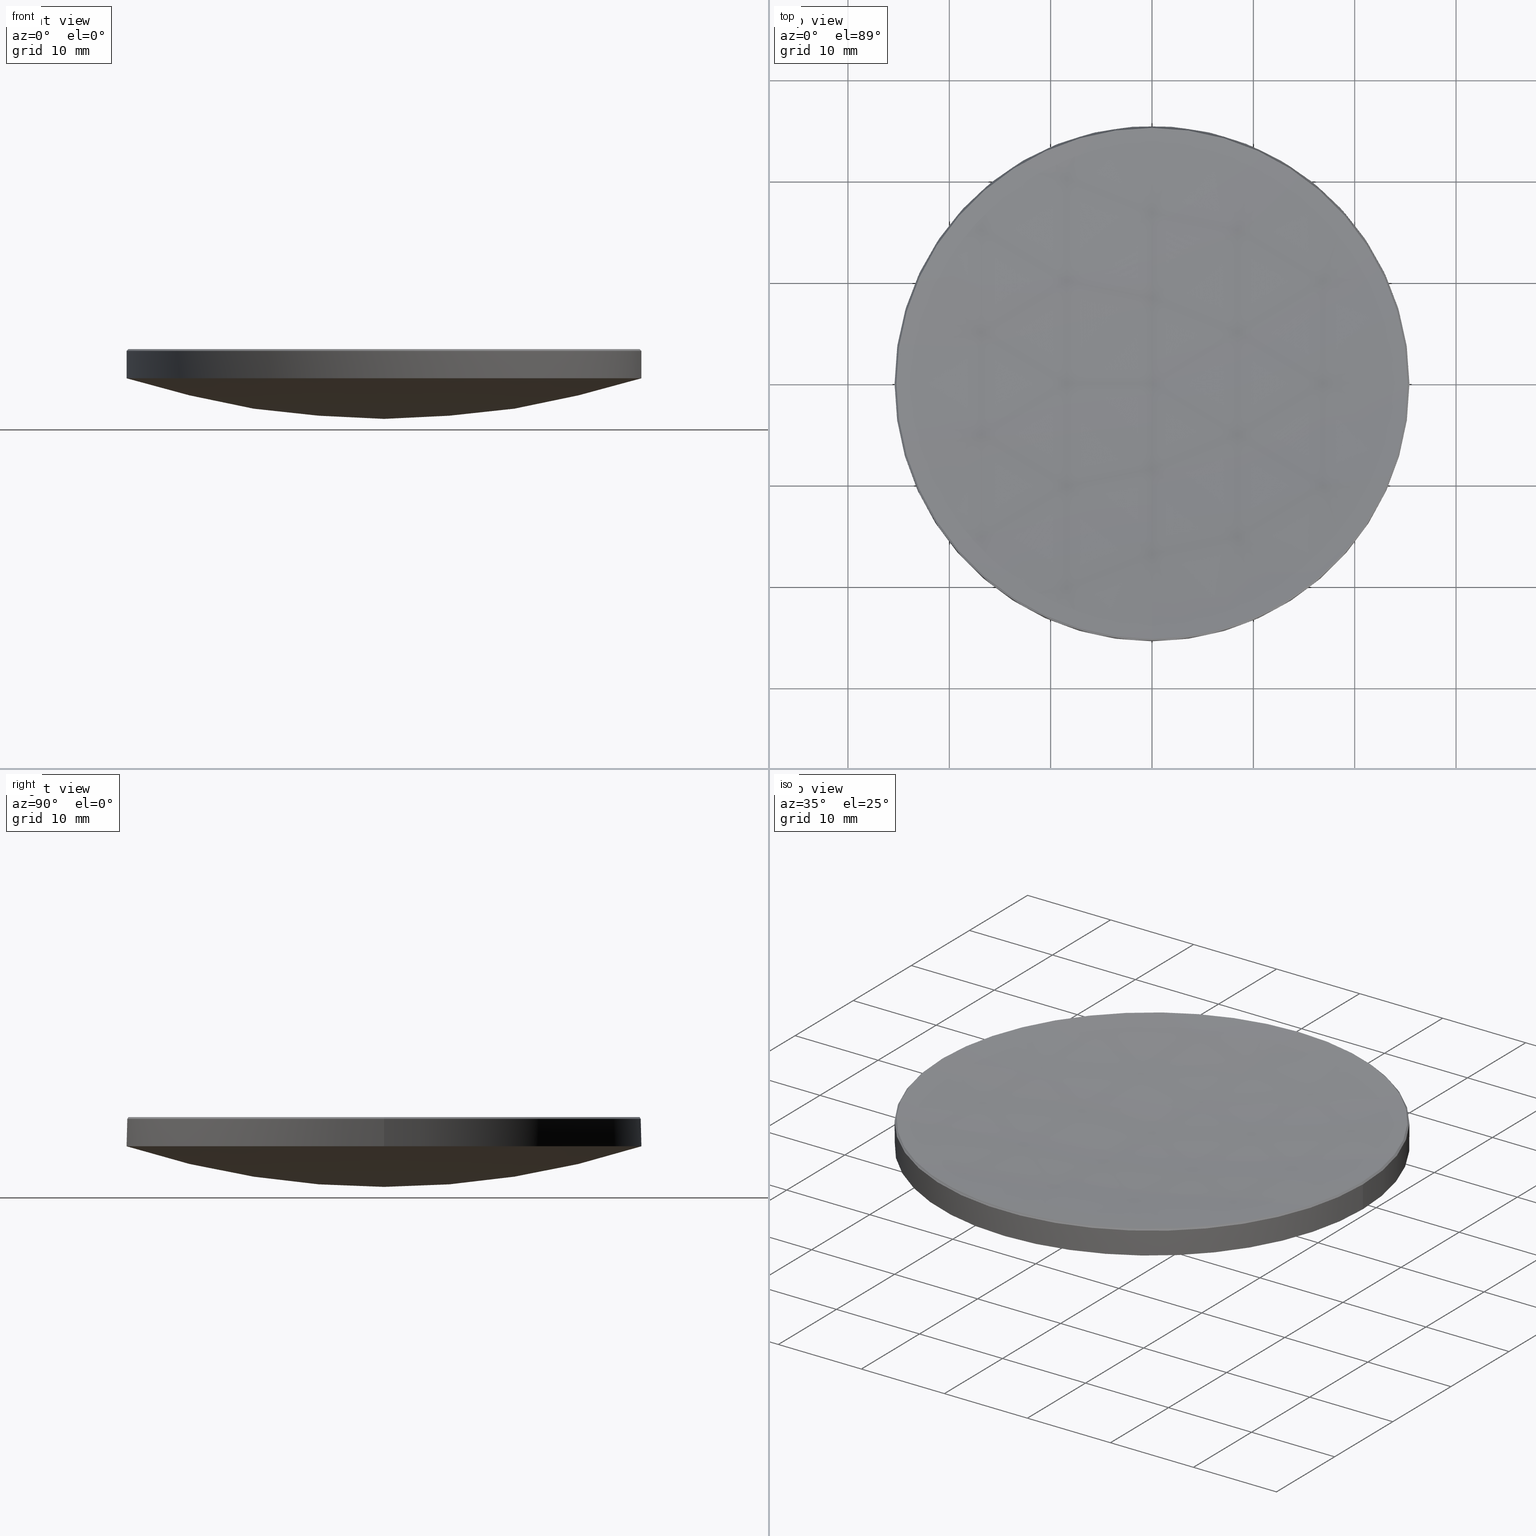
[diagram: canonical four-view strip — front | top / right | iso, engineering-drawing reading convention]
A machine part, canonical four-view strip (front | top / right | iso — engineering-drawing reading convention). The complete STEP part file that produces these views, byte-faithful:
ISO-10303-21;
HEADER;
FILE_DESCRIPTION (( 'STEP AP214' ),
    '1' );
FILE_NAME ('GLM1-050B-250-VIS.STEP',
    '2024-08-09T02:38:12',
    ( 'Windows User' ),
    ( 'P R C' ),
    'SwSTEP 2.0',
    'SolidWorks 2022',
    '' );
FILE_SCHEMA (( 'AUTOMOTIVE_DESIGN' ));
ENDSEC;

DATA;
#1 = DIRECTION ( 'NONE',  ( 1.000000000000000000, 0.000000000000000000, 0.000000000000000000 ) ) ;
#2 = FACE_OUTER_BOUND ( 'NONE', #19, .T. ) ;
#3 = CIRCLE ( 'NONE', #115, 25.22036627463847935 ) ;
#4 = CARTESIAN_POINT ( 'NONE',  ( 0.000000000000000000, 0.000000000000000000, 20.00000000000000000 ) ) ;
#5 = PRESENTATION_LAYER_ASSIGNMENT (  '', '', ( #191 ) ) ;
#6 = DIRECTION ( 'NONE',  ( 1.000000000000000000, 0.000000000000000000, 0.000000000000000000 ) ) ;
#7 = LINE ( 'NONE', #77, #212 ) ;
#8 = AXIS2_PLACEMENT_3D ( 'NONE', #143, #102, #11 ) ;
#9 = EDGE_CURVE ( 'NONE', #30, #176, #51, .T. ) ;
#10 = AXIS2_PLACEMENT_3D ( 'NONE', #168, #84, #130 ) ;
#11 = DIRECTION ( 'NONE',  ( -1.224646799147352961E-16, -1.000000000000000000, 0.000000000000000000 ) ) ;
#12 = APPLICATION_CONTEXT ( 'automotive_design' ) ;
#13 = SHAPE_DEFINITION_REPRESENTATION ( #219, #69 ) ;
#14 = CYLINDRICAL_SURFACE ( 'NONE', #44, 25.39999999999999858 ) ;
#15 = DIRECTION ( 'NONE',  ( 1.000000000000000000, 0.000000000000000000, 0.000000000000000000 ) ) ;
#16 = VERTEX_POINT ( 'NONE', #31 ) ;
#17 = DIRECTION ( 'NONE',  ( -0.000000000000000000, -0.000000000000000000, 1.000000000000000000 ) ) ;
#18 = CIRCLE ( 'NONE', #10, 224.6699999999999875 ) ;
#19 = EDGE_LOOP ( 'NONE', ( #110, #232, #244, #224 ) ) ;
#20 = AXIS2_PLACEMENT_3D ( 'NONE', #65, #111, #154 ) ;
#21 = ORIENTED_EDGE ( 'NONE', *, *, #239, .F. ) ;
#22 = AXIS2_PLACEMENT_3D ( 'NONE', #52, #53, #162 ) ;
#23 = VERTEX_POINT ( 'NONE', #116 ) ;
#24 = APPLICATION_CONTEXT ( 'automotive_design' ) ;
#25 = ORIENTED_EDGE ( 'NONE', *, *, #239, .T. ) ;
#26 = ADVANCED_FACE ( 'NONE', ( #159 ), #183, .T. ) ;
#27 = DIRECTION ( 'NONE',  ( -0.000000000000000000, -0.000000000000000000, -1.000000000000000000 ) ) ;
#28 = CIRCLE ( 'NONE', #147, 25.39999999999999858 ) ;
#29 = DIRECTION ( 'NONE',  ( 0.000000000000000000, 0.000000000000000000, -1.000000000000000000 ) ) ;
#30 = VERTEX_POINT ( 'NONE', #94 ) ;
#31 = CARTESIAN_POINT ( 'NONE',  ( -25.39999999999999858, 0.000000000000000000, 15.69999999999996376 ) ) ;
#32 = EDGE_CURVE ( 'NONE', #207, #30, #91, .T. ) ;
#33 = CARTESIAN_POINT ( 'NONE',  ( 0.000000000000000000, 25.39999999999999147, 12.99999999999999822 ) ) ;
#34 = SURFACE_SIDE_STYLE ('',( #138 ) ) ;
#35 = PRESENTATION_STYLE_ASSIGNMENT (( #192 ) ) ;
#36 =( NAMED_UNIT ( * ) SI_UNIT ( $, .STERADIAN. ) SOLID_ANGLE_UNIT ( ) );
#37 =( LENGTH_UNIT ( ) NAMED_UNIT ( * ) SI_UNIT ( .MILLI., .METRE. ) );
#38 = ORIENTED_EDGE ( 'NONE', *, *, #9, .T. ) ;
#39 = EDGE_CURVE ( 'NONE', #176, #23, #281, .T. ) ;
#40 = CIRCLE ( 'NONE', #271, 224.6699999999999875 ) ;
#41 = DIRECTION ( 'NONE',  ( 0.000000000000000000, 1.000000000000000000, 0.000000000000000000 ) ) ;
#42 = UNCERTAINTY_MEASURE_WITH_UNIT (LENGTH_MEASURE( 1.000000000000000082E-05 ), #174, 'distance_accuracy_value', 'NONE');
#43 = ORIENTED_EDGE ( 'NONE', *, *, #249, .T. ) ;
#44 = AXIS2_PLACEMENT_3D ( 'NONE', #100, #194, #270 ) ;
#45 = ORIENTED_EDGE ( 'NONE', *, *, #202, .F. ) ;
#46 = EDGE_CURVE ( 'NONE', #258, #71, #201, .T. ) ;
#47 = DIRECTION ( 'NONE',  ( -0.000000000000000000, -0.000000000000000000, -1.000000000000000000 ) ) ;
#48 = DIRECTION ( 'NONE',  ( -1.224646799147353207E-16, -1.000000000000000000, 0.000000000000000000 ) ) ;
#49 = DIRECTION ( 'NONE',  ( -1.000000000000000000, 0.000000000000000000, 0.000000000000000000 ) ) ;
#50 = ORIENTED_EDGE ( 'NONE', *, *, #46, .F. ) ;
#51 = CIRCLE ( 'NONE', #67, 25.39999999999999503 ) ;
#52 = CARTESIAN_POINT ( 'NONE',  ( 0.000000000000000000, 0.000000000000000000, 91.53465222435252713 ) ) ;
#53 = DIRECTION ( 'NONE',  ( -1.000000000000000000, 0.000000000000000000, 0.000000000000000000 ) ) ;
#54 = AXIS2_PLACEMENT_3D ( 'NONE', #200, #81, #15 ) ;
#55 = CARTESIAN_POINT ( 'NONE',  ( 0.000000000000000000, 0.000000000000000000, 15.87963372536152562 ) ) ;
#56 = CONICAL_SURFACE ( 'NONE', #161, 25.22036627463847580, 0.7853981633973421417 ) ;
#57 = CONICAL_SURFACE ( 'NONE', #274, 25.22036627463847580, 0.7853981633973421417 ) ;
#58 = SURFACE_STYLE_USAGE ( .BOTH. , #60 ) ;
#59 = VERTEX_POINT ( 'NONE', #250 ) ;
#60 = SURFACE_SIDE_STYLE ('',( #146 ) ) ;
#61 =( NAMED_UNIT ( * ) SI_UNIT ( $, .STERADIAN. ) SOLID_ANGLE_UNIT ( ) );
#62 = ORIENTED_EDGE ( 'NONE', *, *, #73, .F. ) ;
#63 = ORIENTED_EDGE ( 'NONE', *, *, #257, .F. ) ;
#64 = COLOUR_RGB ( '',1.000000000000000000, 1.000000000000000000, 1.000000000000000000 ) ;
#65 = CARTESIAN_POINT ( 'NONE',  ( 0.000000000000000000, 0.000000000000000000, 15.69999999999996376 ) ) ;
#66 = CARTESIAN_POINT ( 'NONE',  ( 25.39999999999999858, 3.110602869834276865E-15, 20.00000000000000000 ) ) ;
#67 = AXIS2_PLACEMENT_3D ( 'NONE', #205, #136, #88 ) ;
#68 = ORIENTED_EDGE ( 'NONE', *, *, #32, .T. ) ;
#69 = ADVANCED_BREP_SHAPE_REPRESENTATION ( 'GLM1-050B-250-VIS', ( #182, #54 ), #180 ) ;
#70 = ORIENTED_EDGE ( 'NONE', *, *, #257, .T. ) ;
#71 = VERTEX_POINT ( 'NONE', #264 ) ;
#72 = SPHERICAL_SURFACE ( 'NONE', #22, 82.54000000000000625 ) ;
#73 = EDGE_CURVE ( 'NONE', #261, #258, #170, .T. ) ;
#74 = DIRECTION ( 'NONE',  ( -1.000000000000000000, 0.000000000000000000, 0.000000000000000000 ) ) ;
#75 = CARTESIAN_POINT ( 'NONE',  ( 0.000000000000000000, 5.054117340081126317E-15, 8.994652224352527980 ) ) ;
#76 = PRODUCT_CONTEXT ( 'NONE', #12, 'mechanical' ) ;
#77 = CARTESIAN_POINT ( 'NONE',  ( -25.22036627463847580, 0.000000000000000000, 15.87963372536152562 ) ) ;
#78 = AXIS2_PLACEMENT_3D ( 'NONE', #273, #190, #167 ) ;
#79 = ADVANCED_FACE ( 'NONE', ( #188 ), #56, .T. ) ;
#80 = VERTEX_POINT ( 'NONE', #133 ) ;
#81 = DIRECTION ( 'NONE',  ( 0.000000000000000000, 0.000000000000000000, 1.000000000000000000 ) ) ;
#82 = ORIENTED_EDGE ( 'NONE', *, *, #39, .T. ) ;
#83 = AXIS2_PLACEMENT_3D ( 'NONE', #255, #120, #163 ) ;
#84 = DIRECTION ( 'NONE',  ( 1.000000000000000000, 0.000000000000000000, 0.000000000000000000 ) ) ;
#85 = UNCERTAINTY_MEASURE_WITH_UNIT (LENGTH_MEASURE( 1.000000000000000082E-05 ), #220, 'distance_accuracy_value', 'NONE');
#86 = ORIENTED_EDGE ( 'NONE', *, *, #123, .F. ) ;
#87 = VECTOR ( 'NONE', #47, 1000.000000000000000 ) ;
#88 = DIRECTION ( 'NONE',  ( 1.000000000000000000, 0.000000000000000000, 0.000000000000000000 ) ) ;
#89 = DIRECTION ( 'NONE',  ( -1.000000000000000000, 1.224646799147353207E-16, 0.000000000000000000 ) ) ;
#90 = PRODUCT_DEFINITION_FORMATION_WITH_SPECIFIED_SOURCE ( '�κ�', '', #124, .NOT_KNOWN. ) ;
#91 = LINE ( 'NONE', #66, #87 ) ;
#92 = VECTOR ( 'NONE', #247, 1000.000000000000000 ) ;
#93 = EDGE_CURVE ( 'NONE', #225, #261, #3, .T. ) ;
#94 = CARTESIAN_POINT ( 'NONE',  ( 25.39999999999999503, 3.110602869834276471E-15, 13.00000000000000000 ) ) ;
#95 = MECHANICAL_DESIGN_GEOMETRIC_PRESENTATION_REPRESENTATION (  '', ( #191 ), #256 ) ;
#96 = DIRECTION ( 'NONE',  ( 1.000000000000000000, 0.000000000000000000, 0.000000000000000000 ) ) ;
#97 = VECTOR ( 'NONE', #103, 1000.000000000000000 ) ;
#98 = DIRECTION ( 'NONE',  ( 0.000000000000000000, 0.000000000000000000, -1.000000000000000000 ) ) ;
#99 = DIRECTION ( 'NONE',  ( 1.000000000000000000, 0.000000000000000000, 0.000000000000000000 ) ) ;
#100 = CARTESIAN_POINT ( 'NONE',  ( 0.000000000000000000, 0.000000000000000000, 20.00000000000000000 ) ) ;
#101 = EDGE_CURVE ( 'NONE', #16, #207, #217, .T. ) ;
#102 = DIRECTION ( 'NONE',  ( -1.000000000000000000, 1.224646799147353207E-16, 0.000000000000000000 ) ) ;
#103 = DIRECTION ( 'NONE',  ( -0.000000000000000000, -0.000000000000000000, -1.000000000000000000 ) ) ;
#104 = EDGE_LOOP ( 'NONE', ( #173, #234, #45, #25, #105 ) ) ;
#105 = ORIENTED_EDGE ( 'NONE', *, *, #152, .F. ) ;
#106 = EDGE_CURVE ( 'NONE', #261, #207, #135, .T. ) ;
#107 = PRESENTATION_STYLE_ASSIGNMENT (( #58 ) ) ;
#108 = ORIENTED_EDGE ( 'NONE', *, *, #202, .T. ) ;
#109 = CIRCLE ( 'NONE', #8, 82.54000000000000625 ) ;
#110 = ORIENTED_EDGE ( 'NONE', *, *, #187, .F. ) ;
#111 = DIRECTION ( 'NONE',  ( 0.000000000000000000, 0.000000000000000000, -1.000000000000000000 ) ) ;
#112 = DIRECTION ( 'NONE',  ( 1.000000000000000000, 0.000000000000000000, 0.000000000000000000 ) ) ;
#113 = PRODUCT_DEFINITION ( 'δ֪', '', #90, #223 ) ;
#114 = ORIENTED_EDGE ( 'NONE', *, *, #122, .T. ) ;
#115 = AXIS2_PLACEMENT_3D ( 'NONE', #229, #156, #262 ) ;
#116 = CARTESIAN_POINT ( 'NONE',  ( -25.39999999999999503, 0.000000000000000000, 13.00000000000000000 ) ) ;
#117 = CIRCLE ( 'NONE', #139, 25.39999999999999503 ) ;
#118 = FACE_OUTER_BOUND ( 'NONE', #145, .T. ) ;
#119 = FACE_OUTER_BOUND ( 'NONE', #131, .T. ) ;
#120 = DIRECTION ( 'NONE',  ( -1.000000000000000000, 0.000000000000000000, 0.000000000000000000 ) ) ;
#121 = FACE_OUTER_BOUND ( 'NONE', #129, .T. ) ;
#122 = EDGE_CURVE ( 'NONE', #23, #80, #166, .T. ) ;
#123 = EDGE_CURVE ( 'NONE', #59, #225, #40, .T. ) ;
#124 = PRODUCT ( 'GLM1-050B-250-VIS', 'GLM1-050B-250-VIS', '', ( #76 ) ) ;
#125 = PRESENTATION_LAYER_ASSIGNMENT (  '', '', ( #213 ) ) ;
#126 =( NAMED_UNIT ( * ) PLANE_ANGLE_UNIT ( ) SI_UNIT ( $, .RADIAN. ) );
#127 = ORIENTED_EDGE ( 'NONE', *, *, #32, .F. ) ;
#128 = APPLICATION_PROTOCOL_DEFINITION ( 'draft international standard', 'automotive_design', 1998, #12 ) ;
#129 = EDGE_LOOP ( 'NONE', ( #86, #70, #227, #108 ) ) ;
#130 = DIRECTION ( 'NONE',  ( 0.000000000000000000, 0.000000000000000000, -1.000000000000000000 ) ) ;
#131 = EDGE_LOOP ( 'NONE', ( #260, #68, #38, #82, #277 ) ) ;
#132 = CARTESIAN_POINT ( 'NONE',  ( 0.000000000000000000, 0.000000000000000000, 15.87963372536149720 ) ) ;
#133 = CARTESIAN_POINT ( 'NONE',  ( -3.110602869834276076E-15, -25.39999999999999147, 12.99999999999999822 ) ) ;
#134 = CARTESIAN_POINT ( 'NONE',  ( 0.000000000000000000, 0.000000000000000000, 15.69999999999996376 ) ) ;
#135 = LINE ( 'NONE', #263, #92 ) ;
#136 = DIRECTION ( 'NONE',  ( -0.000000000000000000, -0.000000000000000000, 1.000000000000000000 ) ) ;
#137 = DIRECTION ( 'NONE',  ( -0.7071067811864724106, 0.000000000000000000, -0.7071067811866226238 ) ) ;
#138 = SURFACE_STYLE_FILL_AREA ( #236 ) ;
#139 = AXIS2_PLACEMENT_3D ( 'NONE', #196, #17, #276 ) ;
#140 = AXIS2_PLACEMENT_3D ( 'NONE', #4, #27, #49 ) ;
#141 = DIRECTION ( 'NONE',  ( 0.000000000000000000, 1.000000000000000000, 0.000000000000000000 ) ) ;
#142 = AXIS2_PLACEMENT_3D ( 'NONE', #237, #74, #141 ) ;
#143 = CARTESIAN_POINT ( 'NONE',  ( 0.000000000000000000, 0.000000000000000000, 91.53465222435252713 ) ) ;
#144 = COLOUR_RGB ( '',1.000000000000000000, 1.000000000000000000, 1.000000000000000000 ) ;
#145 = EDGE_LOOP ( 'NONE', ( #63, #153, #282, #148 ) ) ;
#146 = SURFACE_STYLE_FILL_AREA ( #278 ) ;
#147 = AXIS2_PLACEMENT_3D ( 'NONE', #134, #29, #112 ) ;
#148 = ORIENTED_EDGE ( 'NONE', *, *, #73, .T. ) ;
#149 = CARTESIAN_POINT ( 'NONE',  ( 0.000000000000000000, 25.22036627463835501, 15.87963372536149720 ) ) ;
#150 = APPLICATION_PROTOCOL_DEFINITION ( 'draft international standard', 'automotive_design', 1998, #24 ) ;
#151 = EDGE_LOOP ( 'NONE', ( #127, #242, #208, #114, #43 ) ) ;
#152 = EDGE_CURVE ( 'NONE', #207, #16, #28, .T. ) ;
#153 = ORIENTED_EDGE ( 'NONE', *, *, #123, .T. ) ;
#154 = DIRECTION ( 'NONE',  ( 1.000000000000000000, 0.000000000000000000, 0.000000000000000000 ) ) ;
#155 = PRODUCT_RELATED_PRODUCT_CATEGORY ( 'part', '', ( #124 ) ) ;
#156 = DIRECTION ( 'NONE',  ( -0.000000000000000000, -0.000000000000000000, 1.000000000000000000 ) ) ;
#157 = AXIS2_PLACEMENT_3D ( 'NONE', #185, #179, #211 ) ;
#158 = CARTESIAN_POINT ( 'NONE',  ( 0.000000000000000000, 0.000000000000000000, 239.1295878686335641 ) ) ;
#159 = FACE_OUTER_BOUND ( 'NONE', #151, .T. ) ;
#160 = DIRECTION ( 'NONE',  ( -1.000000000000000000, 0.000000000000000000, 0.000000000000000000 ) ) ;
#161 = AXIS2_PLACEMENT_3D ( 'NONE', #181, #267, #160 ) ;
#162 = DIRECTION ( 'NONE',  ( 0.000000000000000000, 1.000000000000000000, 0.000000000000000000 ) ) ;
#163 = DIRECTION ( 'NONE',  ( 0.000000000000000000, 1.000000000000000000, 0.000000000000000000 ) ) ;
#164 = ADVANCED_FACE ( 'NONE', ( #2 ), #169, .T. ) ;
#165 = CARTESIAN_POINT ( 'NONE',  ( -3.088604083155972347E-15, -25.22036627463835501, 15.87963372536149720 ) ) ;
#166 = CIRCLE ( 'NONE', #184, 25.39999999999999503 ) ;
#167 = DIRECTION ( 'NONE',  ( 0.000000000000000000, 0.000000000000000000, -1.000000000000000000 ) ) ;
#168 = CARTESIAN_POINT ( 'NONE',  ( 0.000000000000000000, 0.000000000000000000, 239.1295878686335641 ) ) ;
#169 = SPHERICAL_SURFACE ( 'NONE', #83, 82.54000000000000625 ) ;
#170 = CIRCLE ( 'NONE', #222, 25.22036627463847935 ) ;
#171 = ORIENTED_EDGE ( 'NONE', *, *, #187, .T. ) ;
#172 = CIRCLE ( 'NONE', #78, 82.54000000000000625 ) ;
#173 = ORIENTED_EDGE ( 'NONE', *, *, #106, .F. ) ;
#174 =( LENGTH_UNIT ( ) NAMED_UNIT ( * ) SI_UNIT ( .MILLI., .METRE. ) );
#175 = ADVANCED_FACE ( 'NONE', ( #121 ), #235, .F. ) ;
#176 = VERTEX_POINT ( 'NONE', #33 ) ;
#177 = UNCERTAINTY_MEASURE_WITH_UNIT (LENGTH_MEASURE( 1.000000000000000082E-05 ), #37, 'distance_accuracy_value', 'NONE');
#178 = ORIENTED_EDGE ( 'NONE', *, *, #101, .F. ) ;
#179 = DIRECTION ( 'NONE',  ( -0.000000000000000000, -0.000000000000000000, 1.000000000000000000 ) ) ;
#180 =( GEOMETRIC_REPRESENTATION_CONTEXT ( 3 ) GLOBAL_UNCERTAINTY_ASSIGNED_CONTEXT ( ( #42 ) ) GLOBAL_UNIT_ASSIGNED_CONTEXT ( ( #174, #198, #36 ) ) REPRESENTATION_CONTEXT ( 'NONE', 'WORKASPACE' ) );
#181 = CARTESIAN_POINT ( 'NONE',  ( 0.000000000000000000, 0.000000000000000000, 15.87963372536152562 ) ) ;
#182 = MANIFOLD_SOLID_BREP ( '����1', #209 ) ;
#183 = CYLINDRICAL_SURFACE ( 'NONE', #140, 25.39999999999999858 ) ;
#184 = AXIS2_PLACEMENT_3D ( 'NONE', #206, #248, #1 ) ;
#185 = CARTESIAN_POINT ( 'NONE',  ( 0.000000000000000000, 0.000000000000000000, 13.00000000000000000 ) ) ;
#186 = AXIS2_PLACEMENT_3D ( 'NONE', #221, #254, #99 ) ;
#187 = EDGE_CURVE ( 'NONE', #231, #80, #109, .T. ) ;
#188 = FACE_OUTER_BOUND ( 'NONE', #104, .T. ) ;
#189 = SPHERICAL_SURFACE ( 'NONE', #245, 224.6699999999999875 ) ;
#190 = DIRECTION ( 'NONE',  ( 1.000000000000000000, -0.000000000000000000, 0.000000000000000000 ) ) ;
#191 = STYLED_ITEM ( 'NONE', ( #35 ), #182 ) ;
#192 = SURFACE_STYLE_USAGE ( .BOTH. , #34 ) ;
#193 =( GEOMETRIC_REPRESENTATION_CONTEXT ( 3 ) GLOBAL_UNCERTAINTY_ASSIGNED_CONTEXT ( ( #177 ) ) GLOBAL_UNIT_ASSIGNED_CONTEXT ( ( #37, #126, #61 ) ) REPRESENTATION_CONTEXT ( 'NONE', 'WORKASPACE' ) );
#194 = DIRECTION ( 'NONE',  ( -0.000000000000000000, -0.000000000000000000, -1.000000000000000000 ) ) ;
#195 = AXIS2_PLACEMENT_3D ( 'NONE', #266, #230, #6 ) ;
#196 = CARTESIAN_POINT ( 'NONE',  ( 0.000000000000000000, 0.000000000000000000, 13.00000000000000000 ) ) ;
#197 =( NAMED_UNIT ( * ) PLANE_ANGLE_UNIT ( ) SI_UNIT ( $, .RADIAN. ) );
#198 =( NAMED_UNIT ( * ) PLANE_ANGLE_UNIT ( ) SI_UNIT ( $, .RADIAN. ) );
#199 = ORIENTED_EDGE ( 'NONE', *, *, #233, .F. ) ;
#200 = CARTESIAN_POINT ( 'NONE',  ( 0.000000000000000000, 0.000000000000000000, 0.000000000000000000 ) ) ;
#201 = CIRCLE ( 'NONE', #195, 25.22036627463847935 ) ;
#202 = EDGE_CURVE ( 'NONE', #71, #225, #265, .T. ) ;
#203 = LINE ( 'NONE', #280, #97 ) ;
#204 = ORIENTED_EDGE ( 'NONE', *, *, #122, .F. ) ;
#205 = CARTESIAN_POINT ( 'NONE',  ( 0.000000000000000000, 0.000000000000000000, 13.00000000000000000 ) ) ;
#206 = CARTESIAN_POINT ( 'NONE',  ( 0.000000000000000000, 0.000000000000000000, 13.00000000000000000 ) ) ;
#207 = VERTEX_POINT ( 'NONE', #252 ) ;
#208 = ORIENTED_EDGE ( 'NONE', *, *, #269, .T. ) ;
#209 = CLOSED_SHELL ( 'NONE', ( #216, #241, #210, #226, #26, #164, #175, #79 ) ) ;
#210 = ADVANCED_FACE ( 'NONE', ( #238 ), #72, .T. ) ;
#211 = DIRECTION ( 'NONE',  ( 1.000000000000000000, 0.000000000000000000, 0.000000000000000000 ) ) ;
#212 = VECTOR ( 'NONE', #137, 1000.000000000000000 ) ;
#213 = STYLED_ITEM ( 'NONE', ( #107 ), #69 ) ;
#214 = DIRECTION ( 'NONE',  ( -1.000000000000000000, 0.000000000000000000, 0.000000000000000000 ) ) ;
#215 =( NAMED_UNIT ( * ) SI_UNIT ( $, .STERADIAN. ) SOLID_ANGLE_UNIT ( ) );
#216 = ADVANCED_FACE ( 'NONE', ( #218 ), #57, .T. ) ;
#217 = CIRCLE ( 'NONE', #20, 25.39999999999999858 ) ;
#218 = FACE_OUTER_BOUND ( 'NONE', #228, .T. ) ;
#219 = PRODUCT_DEFINITION_SHAPE ( 'NONE', 'NONE',  #113 ) ;
#220 =( LENGTH_UNIT ( ) NAMED_UNIT ( * ) SI_UNIT ( .MILLI., .METRE. ) );
#221 = CARTESIAN_POINT ( 'NONE',  ( 0.000000000000000000, 0.000000000000000000, 15.87963372536149720 ) ) ;
#222 = AXIS2_PLACEMENT_3D ( 'NONE', #132, #251, #96 ) ;
#223 = PRODUCT_DEFINITION_CONTEXT ( 'detailed design', #24, 'design' ) ;
#224 = ORIENTED_EDGE ( 'NONE', *, *, #249, .F. ) ;
#225 = VERTEX_POINT ( 'NONE', #165 ) ;
#226 = ADVANCED_FACE ( 'NONE', ( #119 ), #14, .T. ) ;
#227 = ORIENTED_EDGE ( 'NONE', *, *, #46, .T. ) ;
#228 = EDGE_LOOP ( 'NONE', ( #62, #246, #178, #21, #50 ) ) ;
#229 = CARTESIAN_POINT ( 'NONE',  ( 0.000000000000000000, 0.000000000000000000, 15.87963372536149720 ) ) ;
#230 = DIRECTION ( 'NONE',  ( -0.000000000000000000, -0.000000000000000000, 1.000000000000000000 ) ) ;
#231 = VERTEX_POINT ( 'NONE', #75 ) ;
#232 = ORIENTED_EDGE ( 'NONE', *, *, #233, .T. ) ;
#233 = EDGE_CURVE ( 'NONE', #231, #176, #172, .T. ) ;
#234 = ORIENTED_EDGE ( 'NONE', *, *, #93, .F. ) ;
#235 = SPHERICAL_SURFACE ( 'NONE', #142, 224.6699999999999875 ) ;
#236 = FILL_AREA_STYLE ('',( #253 ) ) ;
#237 = CARTESIAN_POINT ( 'NONE',  ( 0.000000000000000000, 0.000000000000000000, 239.1295878686335641 ) ) ;
#238 = FACE_OUTER_BOUND ( 'NONE', #279, .T. ) ;
#239 = EDGE_CURVE ( 'NONE', #71, #16, #7, .T. ) ;
#240 = ORIENTED_EDGE ( 'NONE', *, *, #39, .F. ) ;
#241 = ADVANCED_FACE ( 'NONE', ( #118 ), #189, .F. ) ;
#242 = ORIENTED_EDGE ( 'NONE', *, *, #152, .T. ) ;
#243 = DIRECTION ( 'NONE',  ( -1.000000000000000000, 0.000000000000000000, 0.000000000000000000 ) ) ;
#244 = ORIENTED_EDGE ( 'NONE', *, *, #9, .F. ) ;
#245 = AXIS2_PLACEMENT_3D ( 'NONE', #268, #243, #41 ) ;
#246 = ORIENTED_EDGE ( 'NONE', *, *, #106, .T. ) ;
#247 = DIRECTION ( 'NONE',  ( 0.7071067811864724106, 8.659560562354013342E-17, -0.7071067811866226238 ) ) ;
#248 = DIRECTION ( 'NONE',  ( -0.000000000000000000, -0.000000000000000000, 1.000000000000000000 ) ) ;
#249 = EDGE_CURVE ( 'NONE', #80, #30, #117, .T. ) ;
#250 = CARTESIAN_POINT ( 'NONE',  ( 0.000000000000000000, 1.375706981822179092E-14, 14.45958786863357837 ) ) ;
#251 = DIRECTION ( 'NONE',  ( -0.000000000000000000, -0.000000000000000000, 1.000000000000000000 ) ) ;
#252 = CARTESIAN_POINT ( 'NONE',  ( 25.39999999999999858, 3.110602869834276865E-15, 15.69999999999996376 ) ) ;
#253 = FILL_AREA_STYLE_COLOUR ( '', #64 ) ;
#254 = DIRECTION ( 'NONE',  ( -0.000000000000000000, -0.000000000000000000, 1.000000000000000000 ) ) ;
#255 = CARTESIAN_POINT ( 'NONE',  ( 0.000000000000000000, 0.000000000000000000, 91.53465222435252713 ) ) ;
#256 =( GEOMETRIC_REPRESENTATION_CONTEXT ( 3 ) GLOBAL_UNCERTAINTY_ASSIGNED_CONTEXT ( ( #85 ) ) GLOBAL_UNIT_ASSIGNED_CONTEXT ( ( #220, #197, #215 ) ) REPRESENTATION_CONTEXT ( 'NONE', 'WORKASPACE' ) );
#257 = EDGE_CURVE ( 'NONE', #59, #258, #18, .T. ) ;
#258 = VERTEX_POINT ( 'NONE', #149 ) ;
#259 = FILL_AREA_STYLE_COLOUR ( '', #144 ) ;
#260 = ORIENTED_EDGE ( 'NONE', *, *, #101, .T. ) ;
#261 = VERTEX_POINT ( 'NONE', #272 ) ;
#262 = DIRECTION ( 'NONE',  ( 1.000000000000000000, 0.000000000000000000, 0.000000000000000000 ) ) ;
#263 = CARTESIAN_POINT ( 'NONE',  ( 25.22036627463847580, 3.088604083155986940E-15, 15.87963372536152562 ) ) ;
#264 = CARTESIAN_POINT ( 'NONE',  ( -25.22036627463847935, 0.000000000000000000, 15.87963372536149720 ) ) ;
#265 = CIRCLE ( 'NONE', #186, 25.22036627463847935 ) ;
#266 = CARTESIAN_POINT ( 'NONE',  ( 0.000000000000000000, 0.000000000000000000, 15.87963372536149720 ) ) ;
#267 = DIRECTION ( 'NONE',  ( 0.000000000000000000, 0.000000000000000000, -1.000000000000000000 ) ) ;
#268 = CARTESIAN_POINT ( 'NONE',  ( 0.000000000000000000, 0.000000000000000000, 239.1295878686335641 ) ) ;
#269 = EDGE_CURVE ( 'NONE', #16, #23, #203, .T. ) ;
#270 = DIRECTION ( 'NONE',  ( -1.000000000000000000, 0.000000000000000000, 0.000000000000000000 ) ) ;
#271 = AXIS2_PLACEMENT_3D ( 'NONE', #158, #89, #48 ) ;
#272 = CARTESIAN_POINT ( 'NONE',  ( 25.22036627463847935, 3.099603476495131903E-15, 15.87963372536149720 ) ) ;
#273 = CARTESIAN_POINT ( 'NONE',  ( 0.000000000000000000, 0.000000000000000000, 91.53465222435252713 ) ) ;
#274 = AXIS2_PLACEMENT_3D ( 'NONE', #55, #98, #214 ) ;
#275 = MECHANICAL_DESIGN_GEOMETRIC_PRESENTATION_REPRESENTATION (  '', ( #213 ), #193 ) ;
#276 = DIRECTION ( 'NONE',  ( 1.000000000000000000, 0.000000000000000000, 0.000000000000000000 ) ) ;
#277 = ORIENTED_EDGE ( 'NONE', *, *, #269, .F. ) ;
#278 = FILL_AREA_STYLE ('',( #259 ) ) ;
#279 = EDGE_LOOP ( 'NONE', ( #199, #171, #204, #240 ) ) ;
#280 = CARTESIAN_POINT ( 'NONE',  ( -25.39999999999999858, 0.000000000000000000, 20.00000000000000000 ) ) ;
#281 = CIRCLE ( 'NONE', #157, 25.39999999999999503 ) ;
#282 = ORIENTED_EDGE ( 'NONE', *, *, #93, .T. ) ;
ENDSEC;
END-ISO-10303-21;
